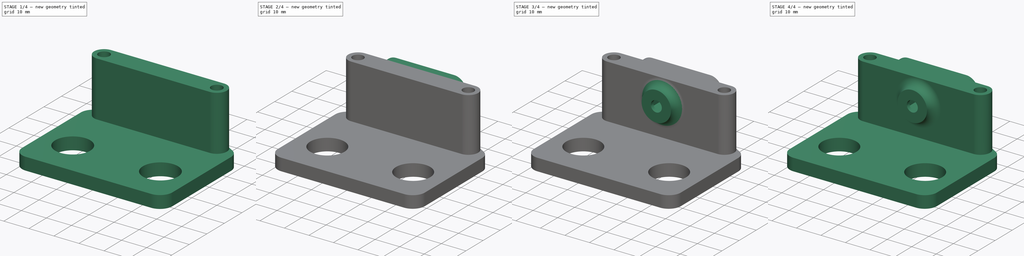
[diagram: build sequence overview — one tinted view per stage of 4, left to right]
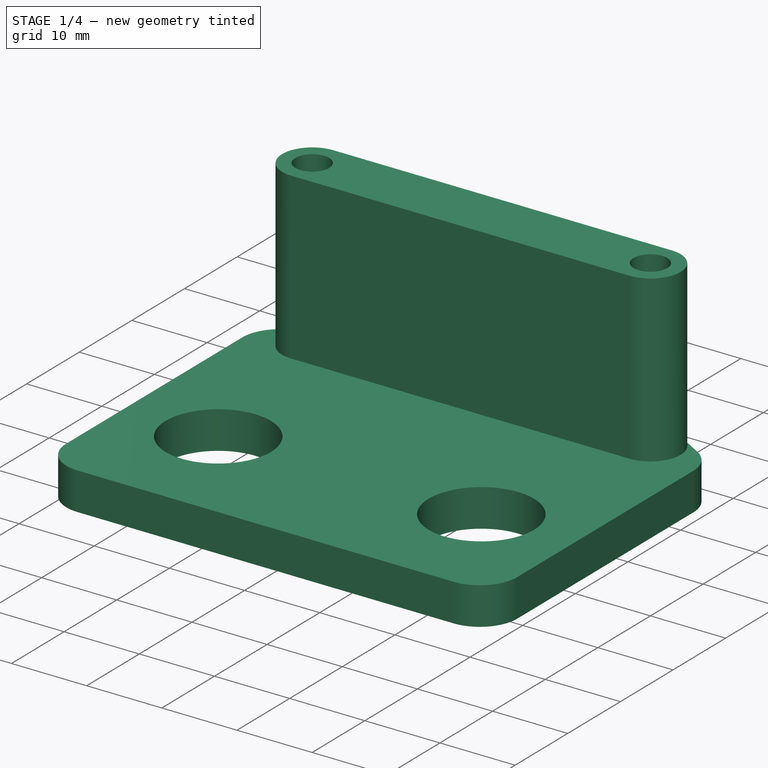
[diagram: stage 1 of 4 — iso view after this stage's code; geometry added in this stage tinted green]
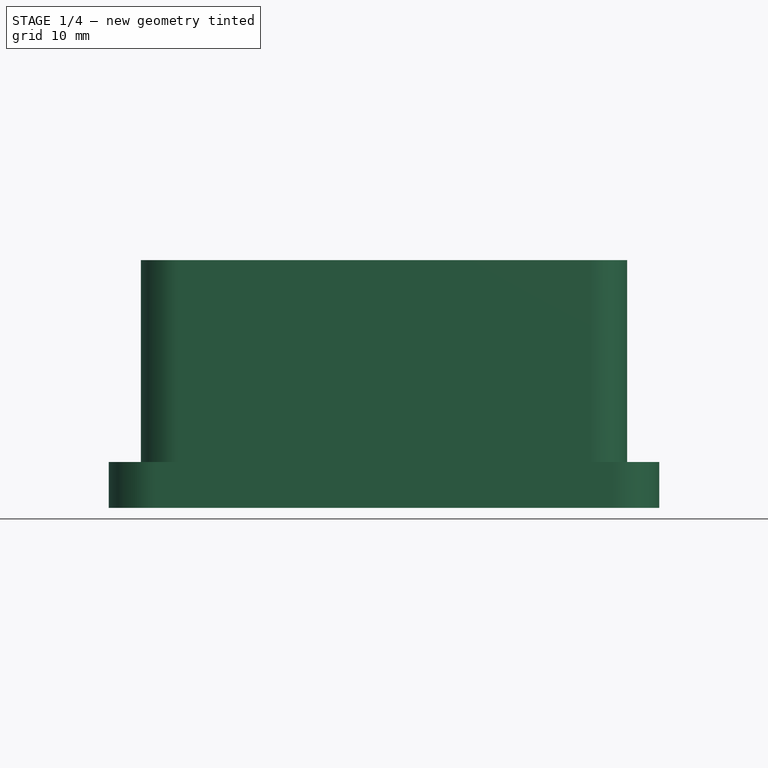
[diagram: stage 1 of 4 — front view after this stage's code; geometry added in this stage tinted green]
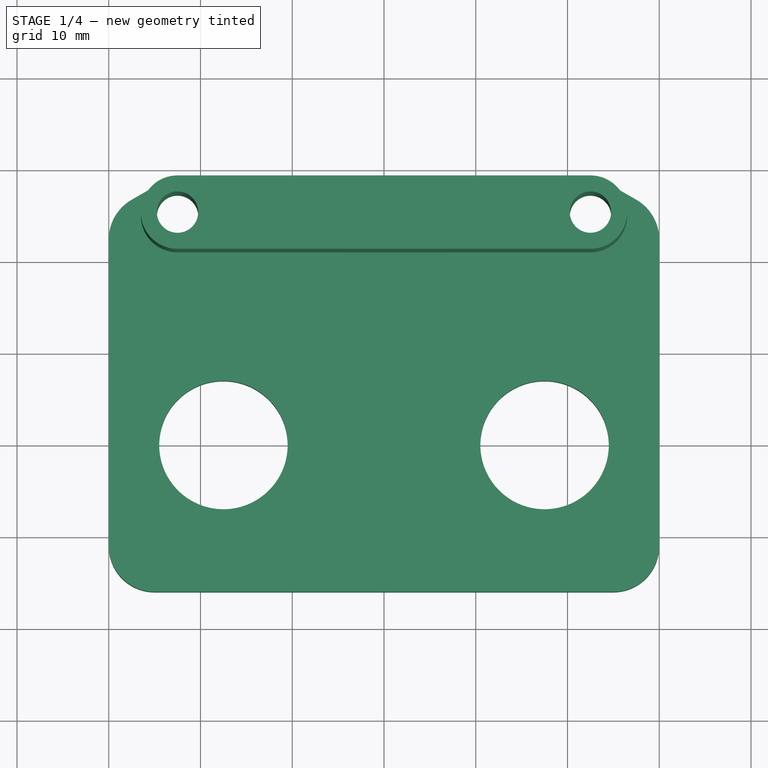
[diagram: stage 1 of 4 — top view after this stage's code; geometry added in this stage tinted green]
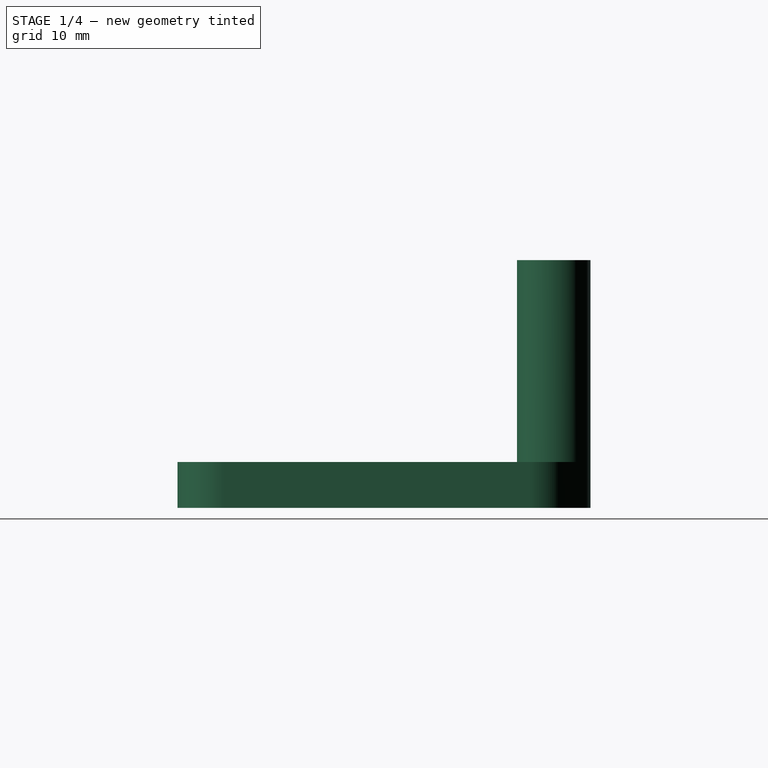
[diagram: stage 1 of 4 — right view after this stage's code; geometry added in this stage tinted green]
FCSTD DOCUMENT  (FreeCAD 1.1R39747 (Git))
Label: claw-back
License: All rights reserved
LicenseURL: https://en.wikipedia.org/wiki/All_rights_reserved
objects: Sketcher::SketchObject×12, PartDesign::Pad×6, PartDesign::Pocket×5, App::Point×2, PartDesign::Hole×1, Part::LocalCoordinateSystem×1, PartDesign::AdditivePipe×1, PartDesign::Body×1
note: 64 computed .brp shape members not serialized (recipe doc carries the construction recipe); baked Part::Feature solids carry a one-line shape summary decoded from their .brp
EXTERNAL_REF file=variables.FCStd obj=Spreadsheet

FEATURE [Sketcher::SketchObject] Sketch
  ArcFitTolerance = 1e-06
  AttachmentSupport = -> [XY_Plane]
  ExternalTypes = [0]
  FullyConstrained = false
  MakeInternals = false
  MapMode = 5
  expr: Constraints[1] = <<variables>>#Spreadsheet.claw_pincher_c2c
  expr: Constraints[30] = <<variables>>#Spreadsheet.claw_back_outer_spacer_holes_wing_angle
  expr: Constraints[33] = <<variables>>#Spreadsheet.claw_back_spacer_diameter / 2
  expr: Constraints[50] = <<variables>>#Spreadsheet.claw_back_outer_spacer_holes_wing_angle
  expr: Constraints[53] = variables#Spreadsheet.distance_bearing_holes_to_end
  sketch-geometry (27):
    g0: LineSegment [constr] StartX=-17.5 StartY=1.14452e-11 StartZ=0 EndX=17.5 EndY=1.14452e-11 EndZ=0
    g1: Circle CenterX=-17.5 CenterY=1.14452e-11 CenterZ=0 NormalX=0 NormalY=0 NormalZ=1 AngleXU=0 Radius=7
    g2: Circle CenterX=17.5 CenterY=1.14452e-11 CenterZ=0 NormalX=0 NormalY=0 NormalZ=1 AngleXU=0 Radius=7
    g3: LineSegment StartX=-27.5 StartY=26.7321 StartZ=0 EndX=-24.5 EndY=28.4641 EndZ=0
    g4: LineSegment StartX=-22.5 StartY=29 StartZ=0 EndX=22.5 EndY=29 EndZ=0
    g5: LineSegment StartX=24.5 StartY=28.4641 StartZ=0 EndX=27.5 EndY=26.7321 EndZ=0
    g6: GeomPoint X=0 Y=29 Z=0
    g7: LineSegment [constr] StartX=-22.5 StartY=25 StartZ=0 EndX=22.5 EndY=25 EndZ=0
    g8: GeomPoint [constr] X=1.28886e-11 Y=25 Z=0
    g9: Circle CenterX=-22.5 CenterY=25 CenterZ=0 NormalX=0 NormalY=0 NormalZ=1 AngleXU=0 Radius=2.25
    g10: Circle CenterX=22.5 CenterY=25 CenterZ=0 NormalX=0 NormalY=0 NormalZ=1 AngleXU=0 Radius=2.25
    g11: Circle [constr] CenterX=-22.5 CenterY=25 CenterZ=0 NormalX=0 NormalY=0 NormalZ=1 AngleXU=0 Radius=4
    g12: Circle [constr] CenterX=22.5 CenterY=25 CenterZ=0 NormalX=0 NormalY=0 NormalZ=1 AngleXU=0 Radius=4
    g13: ArcOfCircle CenterX=22.5 CenterY=25 CenterZ=0 NormalX=0 NormalY=0 NormalZ=1 AngleXU=0 Radius=4 StartAngle=1.0472 EndAngle=1.5708
    g14: ArcOfCircle CenterX=-22.5 CenterY=25 CenterZ=0 NormalX=0 NormalY=0 NormalZ=1 AngleXU=0 Radius=4 StartAngle=1.5708 EndAngle=2.0944
    g15: LineSegment StartX=25 StartY=-16 StartZ=0 EndX=-25 EndY=-16 EndZ=0
    g16: LineSegment StartX=-30 StartY=22.4019 StartZ=0 EndX=-30 EndY=-11 EndZ=0
    g17: ArcOfCircle CenterX=-25 CenterY=-11 CenterZ=0 NormalX=0 NormalY=0 NormalZ=1 AngleXU=0 Radius=5 StartAngle=3.14159 EndAngle=4.71239
    g18: GeomPoint [constr] X=-30 Y=-16 Z=0
    g19: ArcOfCircle CenterX=-25 CenterY=22.4019 CenterZ=0 NormalX=0 NormalY=0 NormalZ=1 AngleXU=0 Radius=5 StartAngle=2.0944 EndAngle=3.14159
    g20: GeomPoint [constr] X=-30 Y=25.2887 Z=0
    g21: ArcOfCircle CenterX=25 CenterY=-11 CenterZ=0 NormalX=0 NormalY=0 NormalZ=1 AngleXU=0 Radius=5 StartAngle=4.71239 EndAngle=6.28319
    g22: GeomPoint [constr] X=30 Y=-16 Z=0
    g23: ArcOfCircle CenterX=25 CenterY=22.4019 CenterZ=0 NormalX=0 NormalY=0 NormalZ=1 AngleXU=0 Radius=5 StartAngle=3.1057e-12 EndAngle=1.0472
    g24: GeomPoint [constr] X=30.2347 Y=25.1532 Z=0
    g25: GeomPoint [constr] X=0 Y=6 Z=0
    g26: LineSegment StartX=30 StartY=22.4019 StartZ=0 EndX=30 EndY=-11 EndZ=0
  constraints (61):
    c: Horizontal(g0)
    c: DistanceX(g0,g0) = 35
    c: Symmetric(g0,g0,g-1)
    c: Diameter(g1) = 14
    c: Coincident(g1,g0)
    c: Coincident(g2,g0)
    c: Equal(g2,g1)
    c: Horizontal(g4)
    c: PointOnObject(g6,g-2)
    c: Horizontal(g7)
    c: DistanceX(g7,g7) = 45
    c: Distance(g0,g7) = 25
    c: Symmetric(g7,g7,g8)
    c: PointOnObject(g8,g-2)
    c: Coincident(g10,g7)
    c: Equal(g9,g10)
    c: Tangent(g4,g11) = 1.5708
    c: Tangent(g3,g11) = 1.5708
    c: Coincident(g12,g7)
    c: Equal(g12,g11)
    c: Equal(g13,g12)
    c: Tangent(g4,g13) = 1.5708
    c: PointOnObject(g6,g4)
    c: Coincident(g5,g13)
    c: Tangent(g5,g12) = 1.5708
    c: Coincident(g14,g3)
    c: Coincident(g14,g4)
    c: Equal(g14,g11)
    c: Diameter(g9) = 4.5
    c: Vertical(g16)
    c: Angle(g3,g7) = 2.61799
    c: Coincident(g9,g14)
    c: Coincident(g7,g11)
    c: Radius(g14) = 4
    c: Horizontal(g15)
    c: PointOnObject(g18,g15)
    c: PointOnObject(g18,g16)
    c: Tangent(g15,g17) = 1.5708
    c: Tangent(g16,g17) = -1.5708
    c: PointOnObject(g20,g3)
    c: PointOnObject(g20,g16)
    c: Tangent(g3,g19) = 1.5708
    c: Tangent(g16,g19) = -1.5708
    c: Radius(g17) = 5
    c: Equal(g19,g17)
    c: Tangent(g26,g21) = 1.5708
    c: Equal(g21,g17)
    c: PointOnObject(g24,g5)
    c: Tangent(g5,g23) = 1.5708
    c: Equal(g23,g21)
    c: Angle(g7,g5) = 2.61799
    c: Horizontal(g22,g15)
    c: Equal(g3,g5)
    c: Distance(g15,g0) = 16
    c: Tangent(g21,g15) = 1.5708
    c: PointOnObject(g25,g-2)
    c: Distance(g25,g0) = 6
    c: Vertical(g26)
    c: PointOnObject(g22,g26)
    c: Tangent(g26,g23) = 1.5708
    c: Distance(g26,g16) = 60
FEATURE [PartDesign::Pad] Pad
  Direction = (0,0,1)
  Length = 5
  Length2 = 10
  Profile = -> Sketch
  ReferenceAxis = -> Sketch [N_Axis]
  Refine = true
  Suppressed = false
  Type = 0
FEATURE [Sketcher::SketchObject] Sketch001
  ArcFitTolerance = 1e-06
  AttachmentSupport = -> [Pad]
  ExternalGeometry = -> [Pad]
  ExternalTypes = [0]
  FullyConstrained = true
  MakeInternals = false
  MapMode = 5
  Placement = pos=(0,0,5) rot=(0,0,1;0rad)
  expr: Constraints[12] = <<variables>>#Spreadsheet.claw_back_spacer_diameter / 2
  sketch-geometry (6):
    g0: ArcOfCircle CenterX=22.5 CenterY=25 CenterZ=0 NormalX=0 NormalY=0 NormalZ=1 AngleXU=0 Radius=4 StartAngle=4.71239 EndAngle=7.85398
    g1: Circle CenterX=22.5 CenterY=25 CenterZ=0 NormalX=0 NormalY=0 NormalZ=1 AngleXU=0 Radius=2.25
    g2: ArcOfCircle CenterX=-22.5 CenterY=25 CenterZ=0 NormalX=0 NormalY=0 NormalZ=1 AngleXU=0 Radius=4 StartAngle=1.5708 EndAngle=4.71239
    g3: LineSegment StartX=-22.5 StartY=29 StartZ=0 EndX=22.5 EndY=29 EndZ=0
    g4: LineSegment StartX=22.5 StartY=21 StartZ=0 EndX=-22.5 EndY=21 EndZ=0
    g5: Circle CenterX=-22.5 CenterY=25 CenterZ=0 NormalX=0 NormalY=0 NormalZ=1 AngleXU=0 Radius=2.25
  constraints (13):
    c: Coincident(g0,g-3)
    c: Coincident(g1,g0)
    c: Equal(g-3,g1)
    c: Coincident(g2,g-4)
    c: Horizontal(g3)
    c: Horizontal(g4)
    c: Tangent(g3,g0) = 1.5708
    c: Tangent(g2,g3) = 1.5708
    c: Coincident(g5,g2)
    c: Equal(g-4,g5)
    c: Coincident(g0,g4)
    c: Tangent(g4,g2) = 1.5708
    c: Radius(g2) = 4
FEATURE [PartDesign::Pad] Pad001
  BaseFeature = -> Pad
  Direction = (0,0,1)
  Length = 22
  Length2 = 10
  Profile = -> Sketch001
  ReferenceAxis = -> Sketch001 [N_Axis]
  Refine = true
  Suppressed = false
  Type = 0
  expr: Length = variables#Spreadsheet.claw_back_spacer_length
FEATURE [Sketcher::SketchObject] Sketch002
  ArcFitTolerance = 1e-06
  AttachmentSupport = -> [Pad001]
  ExternalGeometry = -> [Pad001]
  ExternalTypes = [0]
  FullyConstrained = true
  MakeInternals = false
  MapMode = 5
  Placement = pos=(2.268e-13,29,3.4653e-11) rot=(0,0.707107,0.707107;3.14159rad)
  expr: Constraints[14] = <<variables>>#Spreadsheet.claw_base_thickness
  sketch-geometry (7):
    g0: LineSegment [constr] StartX=-25 StartY=35.7 StartZ=0 EndX=25 EndY=35.7 EndZ=0
    g1: GeomPoint [constr] X=0 Y=35.7 Z=0
    g2: LineSegment [constr] StartX=-11.3137 StartY=17.85 StartZ=0 EndX=11.3137 EndY=17.85 EndZ=0
    g3: GeomPoint [constr] X=0 Y=17.85 Z=0
    g4: Circle CenterX=-11.3137 CenterY=17.85 CenterZ=0 NormalX=0 NormalY=0 NormalZ=1 AngleXU=0 Radius=2.25
    g5: Circle CenterX=11.3137 CenterY=17.85 CenterZ=0 NormalX=0 NormalY=0 NormalZ=1 AngleXU=0 Radius=2.25
    g6: Circle CenterX=0 CenterY=17.85 CenterZ=0 NormalX=0 NormalY=0 NormalZ=1 AngleXU=0 Radius=5
  constraints (15):
    c: Distance(g0) = 50
    c: Horizontal(g0)
    c: Symmetric(g0,g0,g1)
    c: PointOnObject(g1,g-2)
    c: Horizontal(g2)
    c: DistanceX(g2,g2) = 22.6274
    c: Symmetric(g2,g2,g3)
    c: Symmetric(g1,g-1,g3)
    c: Diameter(g4) = 4.5
    c: Coincident(g4,g2)
    c: Coincident(g5,g2)
    c: Equal(g4,g5)
    c: Diameter(g6) = 10
    c: Coincident(g6,g3)
    c: Distance(g0,g-3) = 8.7
FEATURE [PartDesign::Pocket] Pocket
  BaseFeature = -> Pad001
  Direction = (-7.8e-15,-1,-1.195e-12)
  Length = 0
  Length2 = 5
  Profile = -> Sketch002
  ReferenceAxis = -> Sketch002 [N_Axis]
  Refine = true
  Suppressed = true
  Type = 3
  UpToFace = -> Pad001 [Face14]
  expr: Suppressed = variables#Spreadsheet.rex_mount
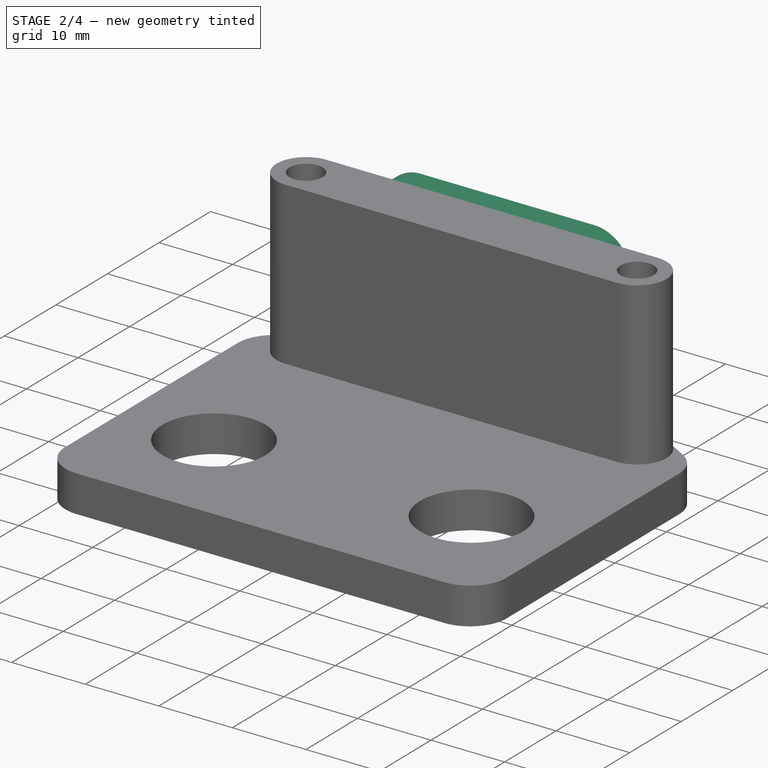
[diagram: stage 2 of 4 — iso view after this stage's code; geometry added in this stage tinted green]
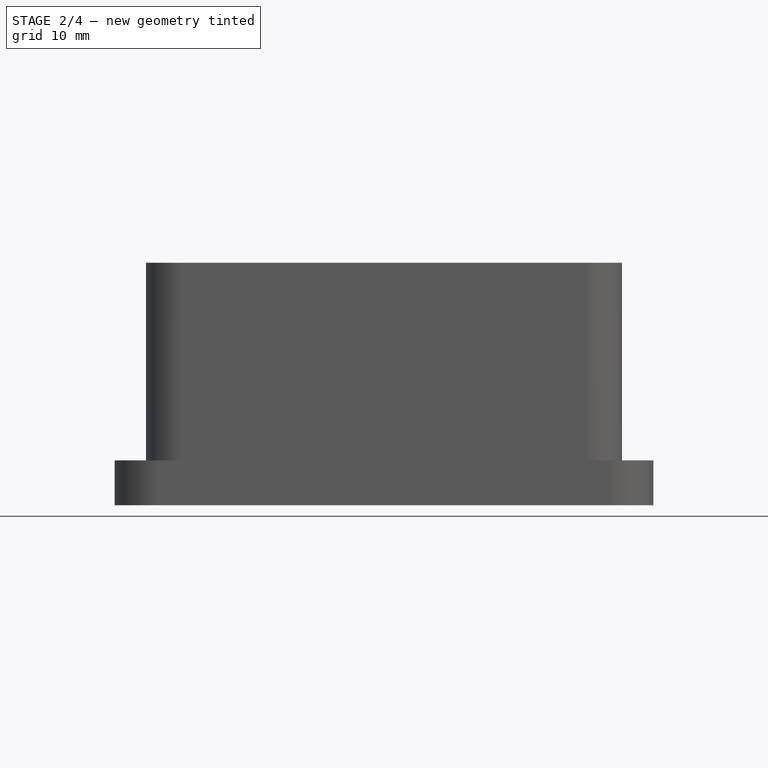
[diagram: stage 2 of 4 — front view after this stage's code; geometry added in this stage tinted green]
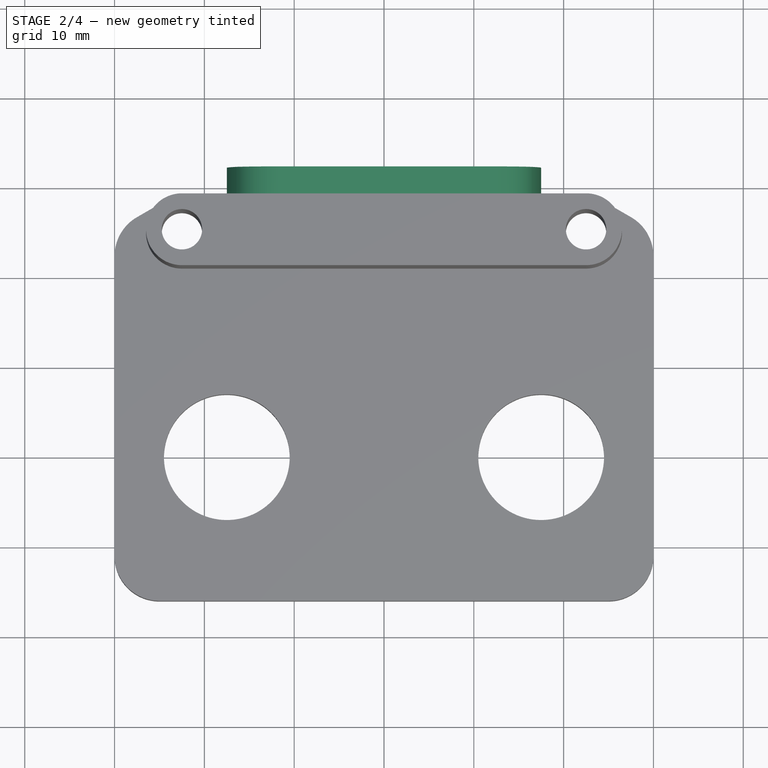
[diagram: stage 2 of 4 — top view after this stage's code; geometry added in this stage tinted green]
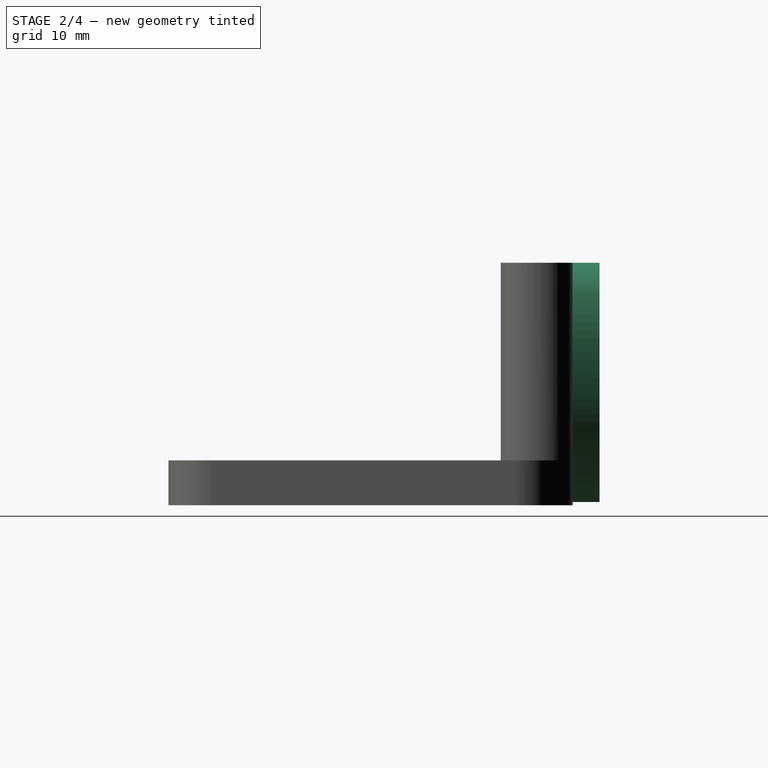
[diagram: stage 2 of 4 — right view after this stage's code; geometry added in this stage tinted green]
FEATURE [Sketcher::SketchObject] Sketch003
  ArcFitTolerance = 1e-06
  AttachmentSupport = -> [Pocket]
  ExternalTypes = [0]
  FullyConstrained = true
  MakeInternals = false
  MapMode = 5
  Placement = pos=(0,21,0) rot=(1,0,0;1.5708rad)
  sketch-geometry (2):
    g0: Circle CenterX=-11.3137 CenterY=17.85 CenterZ=0 NormalX=0 NormalY=0 NormalZ=1 AngleXU=0 Radius=4.75
    g1: Circle CenterX=11.3137 CenterY=17.85 CenterZ=0 NormalX=0 NormalY=0 NormalZ=1 AngleXU=0 Radius=4.75
  constraints (4):
    c: Diameter(g0) = 9.5
    c: Equal(g1,g0)
    c: Coincident(g-4,g1)
    c: Coincident(g-3,g0)
FEATURE [PartDesign::Pocket] Pocket001
  BaseFeature = -> Pocket
  Direction = (0,1,-2e-16)
  Length = 0
  Length2 = 5
  Offset = 2
  Profile = -> Sketch003
  ReferenceAxis = -> Sketch003 [N_Axis]
  Refine = true
  Suppressed = true
  Type = 3
  UpToFace = -> Pocket [Face16]
  expr: Suppressed = variables#Spreadsheet.rex_mount + variables#Spreadsheet.Hub_Mount_Countersink
FEATURE [Sketcher::SketchObject] Sketch004
  ArcFitTolerance = 1e-06
  AttachmentSupport = -> [Pocket001]
  ExternalGeometry = -> [Pocket001]
  ExternalTypes = [0]
  FullyConstrained = true
  MakeInternals = false
  MapMode = 5
  Placement = pos=(2.268e-13,29,3.4653e-11) rot=(0,0.707107,0.707107;3.14159rad)
  expr: Constraints[4] = <<variables>>#Spreadsheet.claw_base_thickness
  sketch-geometry (14):
    g0: LineSegment [constr] StartX=-25 StartY=35.7 StartZ=0 EndX=25 EndY=35.7 EndZ=0
    g1: GeomPoint [constr] X=-1.056e-13 Y=35.7 Z=0
    g2: ArcOfCircle CenterX=-2.462e-13 CenterY=17.85 CenterZ=0 NormalX=0 NormalY=0 NormalZ=1 AngleXU=0 Radius=17.5 StartAngle=2.80317 EndAngle=6.62161
    g3: LineSegment StartX=-11.791 StartY=27 StartZ=0 EndX=11.791 EndY=27 EndZ=0
    g4: LineSegment StartX=3.575 StartY=19.914 StartZ=0 EndX=-2.669e-13 EndY=21.9781 EndZ=0
    g5: LineSegment StartX=-2.669e-13 StartY=21.9781 StartZ=0 EndX=-3.575 EndY=19.914 EndZ=0
    g6: LineSegment StartX=-3.575 StartY=19.914 StartZ=0 EndX=-3.575 EndY=15.786 EndZ=0
    g7: LineSegment StartX=-3.575 StartY=15.786 StartZ=0 EndX=-3.353e-13 EndY=13.7219 EndZ=0
    g8: LineSegment StartX=-3.353e-13 StartY=13.7219 StartZ=0 EndX=3.575 EndY=15.786 EndZ=0
    g9: LineSegment StartX=3.575 StartY=15.786 StartZ=0 EndX=3.575 EndY=19.914 EndZ=0
    g10: Circle [constr] CenterX=-2.462e-13 CenterY=17.85 CenterZ=0 NormalX=0 NormalY=0 NormalZ=1 AngleXU=0 Radius=4.12805
    g11: Circle [constr] CenterX=-2.462e-13 CenterY=17.85 CenterZ=0 NormalX=0 NormalY=0 NormalZ=1 AngleXU=0 Radius=3.575
    g12: ArcOfCircle CenterX=11.791 CenterY=22 CenterZ=0 NormalX=0 NormalY=0 NormalZ=1 AngleXU=0 Radius=5 StartAngle=0.338423 EndAngle=1.5708
    g13: ArcOfCircle CenterX=-11.791 CenterY=22 CenterZ=0 NormalX=0 NormalY=0 NormalZ=1 AngleXU=0 Radius=5 StartAngle=1.5708 EndAngle=2.80317
  constraints (34):
    c: Distance(g0) = 50
    c: Horizontal(g0)
    c: Symmetric(g0,g0,g1)
    c: PointOnObject(g1,g-2)
    c: Distance(g1,g-3) = 8.7
    c: Diameter(g2) = 35
    c: Symmetric(g-1,g1,g2)
    c: Horizontal(g3)
    c: Coincident(g4,g5)
    c: Coincident(g5,g6)
    c: Coincident(g6,g7)
    c: Coincident(g7,g8)
    c: Coincident(g8,g9)
    c: Coincident(g9,g4)
    c: Equal(g4, g5-g9) x5
    c: PointOnObject(g4,g10)
    c: PointOnObject(g5,g10)
    c: PointOnObject(g6,g10)
    c: PointOnObject(g7,g10)
    c: PointOnObject(g8,g10)
    c: PointOnObject(g9,g10)
    c: Coincident(g10,g2)
    c: Vertical(g9)
    c: Coincident(g11,g2)
    c: Tangent(g11,g4)
    c: Diameter(g11) = 7.15  'rex_thickness'
    c: Tangent(g2,g12) = -1.5708
    c: Tangent(g3,g12) = 1.5708
    c: Tangent(g2,g13) = -1.5708
    c: Tangent(g3,g13) = 1.5708
    c: Radius(g13) = 5
    c: Equal(g12,g13)
    c: PointOnObject(g3,g-3)
    c: Distance(g2,g-3) = 9.15  'MountDistFromWall'
FEATURE [App::Point] Origin001  label="Origin"
  Role = Origin
FEATURE [App::Point] Origin002
  Role = Origin
FEATURE [PartDesign::Hole] Hole
  BaseFeature = -> Pocket001
  CustomThreadClearance = 0
  Depth = 25
  DepthType = 0
  Diameter = 4.5
  DrillForDepth = false
  DrillPoint = 1
  DrillPointAngle = 118
  HoleCutCountersinkAngle = 90
  HoleCutCustomValues = false
  HoleCutDepth = 3
  HoleCutDiameter = 9
  HoleCutType = 2
  ModelThread = false
  Profile = -> Pocket001 [?Edge42,?Edge40]
  Refine = true
  Reversed = true
  Suppressed = true
  Tapered = false
  TaperedAngle = 90
  ThreadClass = 0
  ThreadDepth = 25
  ThreadDepthType = 0
  ThreadDirection = 0
  ThreadFit = 0
  ThreadSize = 11
  ThreadType = 1
  Threaded = false
  UseCustomThreadClearance = false
  expr: Suppressed = 2 - (variables#Spreadsheet.hub_mount + variables#Spreadsheet.Hub_Mount_Countersink)
FEATURE [PartDesign::Pad] Pad002
  BaseFeature = -> Hole
  Direction = (7.8e-15,1,1.195e-12)
  Length = 3
  Length2 = 10
  Profile = -> Sketch004
  ReferenceAxis = -> Sketch004 [N_Axis]
  Refine = true
  Suppressed = false
  Type = 0
  expr: Suppressed = variables#Spreadsheet.hub_mount
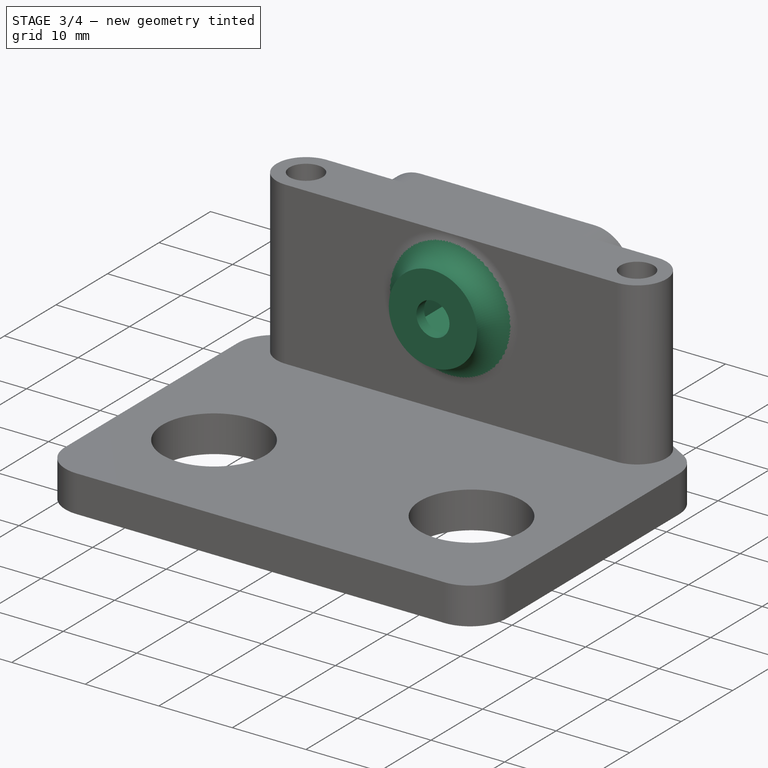
[diagram: stage 3 of 4 — iso view after this stage's code; geometry added in this stage tinted green]
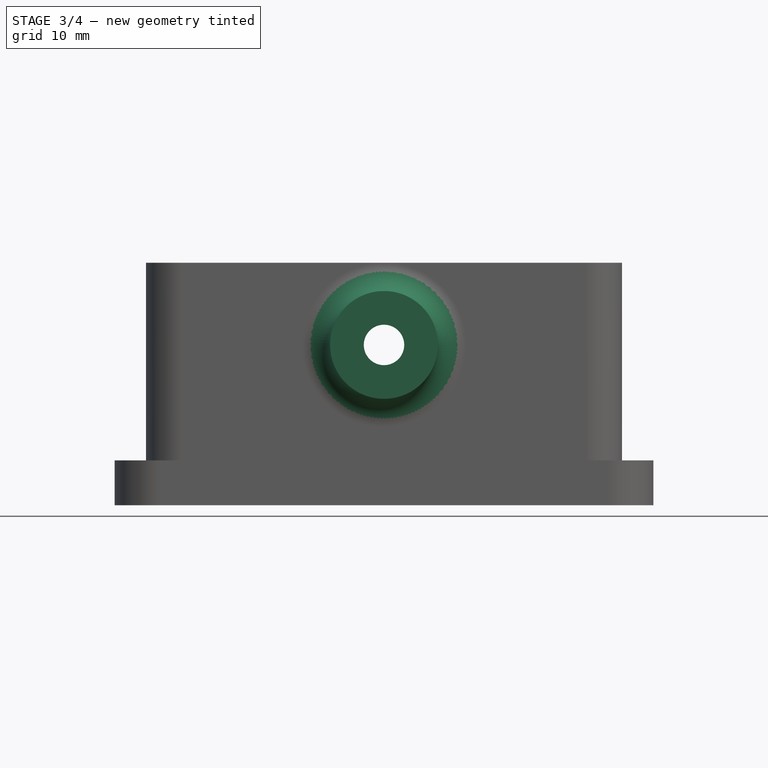
[diagram: stage 3 of 4 — front view after this stage's code; geometry added in this stage tinted green]
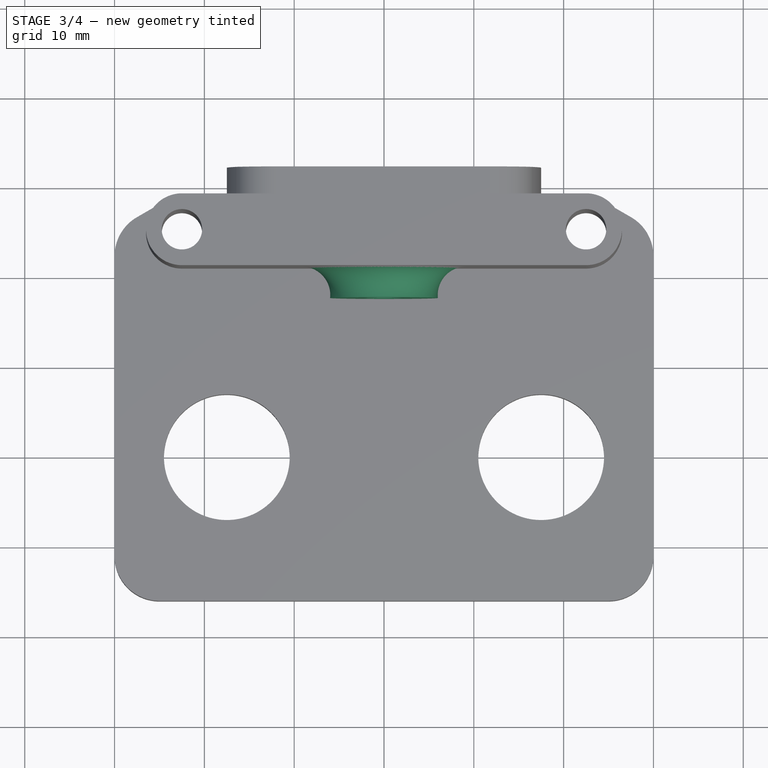
[diagram: stage 3 of 4 — top view after this stage's code; geometry added in this stage tinted green]
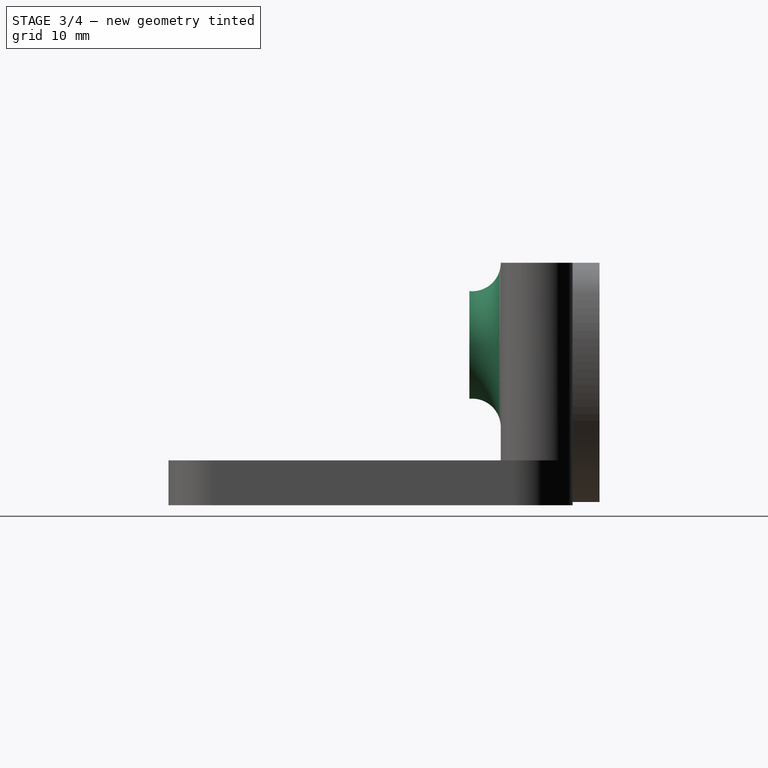
[diagram: stage 3 of 4 — right view after this stage's code; geometry added in this stage tinted green]
FEATURE [Sketcher::SketchObject] Sketch005
  ArcFitTolerance = 1e-06
  AttachmentSupport = -> [Pad002]
  ExternalGeometry = -> [Pad002]
  ExternalTypes = [0]
  FullyConstrained = true
  MakeInternals = false
  MapMode = 5
  Placement = pos=(2.268e-13,29,3.4653e-11) rot=(0,0.707107,0.707107;3.14159rad)
  expr: Constraints[20] = Sketch004.Constraints.rex_thickness
  sketch-geometry (8):
    g0: LineSegment StartX=3.575 StartY=19.914 StartZ=0 EndX=4.3108e-12 EndY=21.9781 EndZ=0
    g1: LineSegment StartX=4.3108e-12 StartY=21.9781 StartZ=0 EndX=-3.575 EndY=19.914 EndZ=0
    g2: LineSegment StartX=-3.575 StartY=19.914 StartZ=0 EndX=-3.575 EndY=15.786 EndZ=0
    g3: LineSegment StartX=-3.575 StartY=15.786 StartZ=0 EndX=-4.1283e-12 EndY=13.7219 EndZ=0
    g4: LineSegment StartX=-4.1283e-12 StartY=13.7219 StartZ=0 EndX=3.575 EndY=15.786 EndZ=0
    g5: LineSegment StartX=3.575 StartY=15.786 StartZ=0 EndX=3.575 EndY=19.914 EndZ=0
    g6: Circle [constr] CenterX=-2.462e-13 CenterY=17.85 CenterZ=0 NormalX=0 NormalY=0 NormalZ=1 AngleXU=0 Radius=4.12805
    g7: Circle [constr] CenterX=-2.462e-13 CenterY=17.85 CenterZ=0 NormalX=0 NormalY=0 NormalZ=1 AngleXU=0 Radius=3.575
  constraints (18):
    c: Coincident(g0,g1)
    c: Coincident(g1,g2)
    c: Coincident(g2,g3)
    c: Coincident(g3,g4)
    c: Coincident(g4,g5)
    c: Coincident(g5,g0)
    c: Equal(g0, g1-g5) x5
    c: PointOnObject(g0,g6)
    c: PointOnObject(g1,g6)
    c: PointOnObject(g2,g6)
    c: PointOnObject(g3,g6)
    c: PointOnObject(g4,g6)
    c: PointOnObject(g5,g6)
    c: Coincident(g6,g-3)
    c: Coincident(g7,g6)
    c: Tangent(g7,g5)
    c: Diameter(g7) = 7.15
    c: Vertical(g5)
FEATURE [PartDesign::Pocket] Pocket002
  BaseFeature = -> Pad002
  Direction = (-7.8e-15,-1,-1.195e-12)
  Length = 0
  Length2 = 5
  Profile = -> Sketch005
  ReferenceAxis = -> Sketch005 [N_Axis]
  Refine = true
  Suppressed = false
  Type = 3
  UpToFace = -> Pad002 [Face7]
  expr: Suppressed = variables#Spreadsheet.hub_mount
FEATURE [Sketcher::SketchObject] Sketch006
  ArcFitTolerance = 1e-06
  AttachmentSupport = -> [Pocket002]
  ExternalGeometry = -> [Pocket002]
  ExternalTypes = [0,0,0,0,0,0]
  FullyConstrained = true
  MakeInternals = false
  MapMode = 5
  Placement = pos=(0,21,0) rot=(1,0,0;1.5708rad)
  sketch-geometry (2):
    g0: Circle [constr] CenterX=7.888e-13 CenterY=17.85 CenterZ=0 NormalX=0 NormalY=0 NormalZ=1 AngleXU=0 Radius=3.575
    g1: Circle CenterX=7.888e-13 CenterY=17.85 CenterZ=0 NormalX=0 NormalY=0 NormalZ=1 AngleXU=0 Radius=6
  constraints (5):
    c: Tangent(g0,g-8)
    c: Tangent(g0,g-5)
    c: Tangent(g0,g-6)
    c: Coincident(g1,g0)
    c: Diameter(g1) = 12
FEATURE [PartDesign::Pad] Pad003
  BaseFeature = -> Pocket002
  Direction = (0,-1,2e-16)
  Length = 2
  Length2 = 10
  Profile = -> Sketch006
  ReferenceAxis = -> Sketch006 [N_Axis]
  Refine = true
  Suppressed = false
  Type = 0
  expr: Suppressed = variables#Spreadsheet.hub_mount
FEATURE [Sketcher::SketchObject] Sketch007
  ArcFitTolerance = 1e-06
  AttachmentOffset = pos=(0,0,2) rot=(0,0,1;0rad)
  AttachmentSupport = -> [Pad003]
  ExternalTypes = [0]
  FullyConstrained = true
  MakeInternals = false
  MapMode = 5
  Placement = pos=(0,19,4e-16) rot=(1,0,0;1.5708rad)
  expr: .AttachmentOffset.Base.z = Pad003.Length
  sketch-geometry (1):
    g0: Circle CenterX=0 CenterY=17.85 CenterZ=0 NormalX=0 NormalY=0 NormalZ=1 AngleXU=0 Radius=2.25
  constraints (2):
    c: Diameter(g0) = 4.5
    c: Coincident(g0,g-3)
FEATURE [PartDesign::Pad] Pad004
  BaseFeature = -> Pad003
  Direction = (0,-1,2e-16)
  Length = 1.5
  Length2 = 10
  Profile = -> Sketch007
  ReferenceAxis = -> Sketch007 [N_Axis]
  Refine = true
  Suppressed = false
  Type = 0
  expr: Suppressed = variables#Spreadsheet.hub_mount
FEATURE [Part::LocalCoordinateSystem] LCS
  AttacherType = Attacher::AttachEngine3D
  AttachmentOffset = pos=(-3.5,-9.15,0) rot=(0,-1,0;1.5708rad)
  AttachmentSupport = -> [Pad004]
  MapMode = 45
  OriginFeatures = -> [X_Axis001,Y_Axis001,Z_Axis001,XY_Plane001,XZ_Plane001,YZ_Plane001,Origin002]
  Placement = pos=(-1.2125e-08,17.5,17.85) rot=(1,0,0;1.5708rad)
  expr: .AttachmentOffset.Base.x = -(Pad003.Length + Pad004.Length)
  expr: .AttachmentOffset.Base.y = -Sketch004.Constraints.MountDistFromWall
  expr: .AttachmentOffset.Base.z = 0
FEATURE [Sketcher::SketchObject] Sketch008
  ArcFitTolerance = 1e-06
  AttachmentSupport = -> [YZ_Plane001]
  ExternalGeometry = -> [Pad004]
  ExternalTypes = [0,0]
  FullyConstrained = true
  MakeInternals = false
  MapMode = 5
  Placement = pos=(0,0,0) rot=(0.57735,0.57735,0.57735;2.0944rad)
  sketch-geometry (3):
    g0: LineSegment StartX=17.5 StartY=23.85 StartZ=0 EndX=21 EndY=23.85 EndZ=0
    g1: LineSegment StartX=21 StartY=23.85 StartZ=0 EndX=21 EndY=27 EndZ=0
    g2: ArcOfCircle CenterX=17.8325 CenterY=27 CenterZ=0 NormalX=0 NormalY=0 NormalZ=1 AngleXU=0 Radius=3.1675 StartAngle=4.60722 EndAngle=6.28319
  constraints (7):
    c: PointOnObject(g0,g-3)
    c: Horizontal(g0)
    c: Coincident(g1,g0)
    c: Coincident(g1,g-3)
    c: Coincident(g2,g0)
    c: Tangent(g2,g1) = -1.5708
    c: Coincident(g-4,g0)
FEATURE [PartDesign::AdditivePipe] AdditivePipe
  AuxilleryCurvelinear = true
  AuxillerySpineTangent = false
  BaseFeature = -> Pad004
  Binormal = (0,0,0)
  Mode = 0
  Profile = -> Sketch008
  Refine = true
  Spine = -> Pad004 [Edge40]
  SpineTangent = false
  Suppressed = false
  Transformation = 0
  Transition = 0
  expr: Suppressed = variables#Spreadsheet.hub_mount
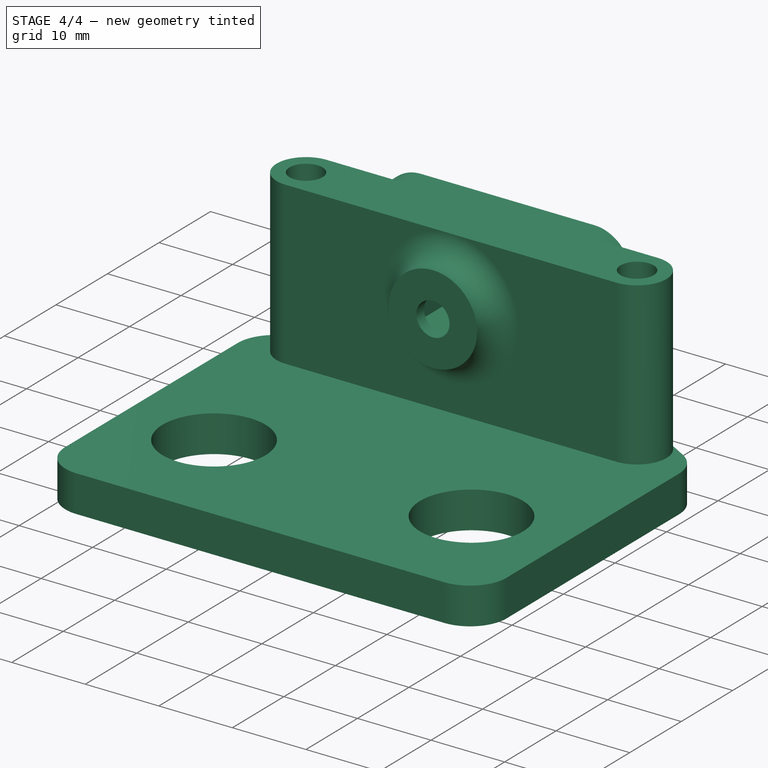
[diagram: stage 4 of 4 — iso view after this stage's code; geometry added in this stage tinted green]
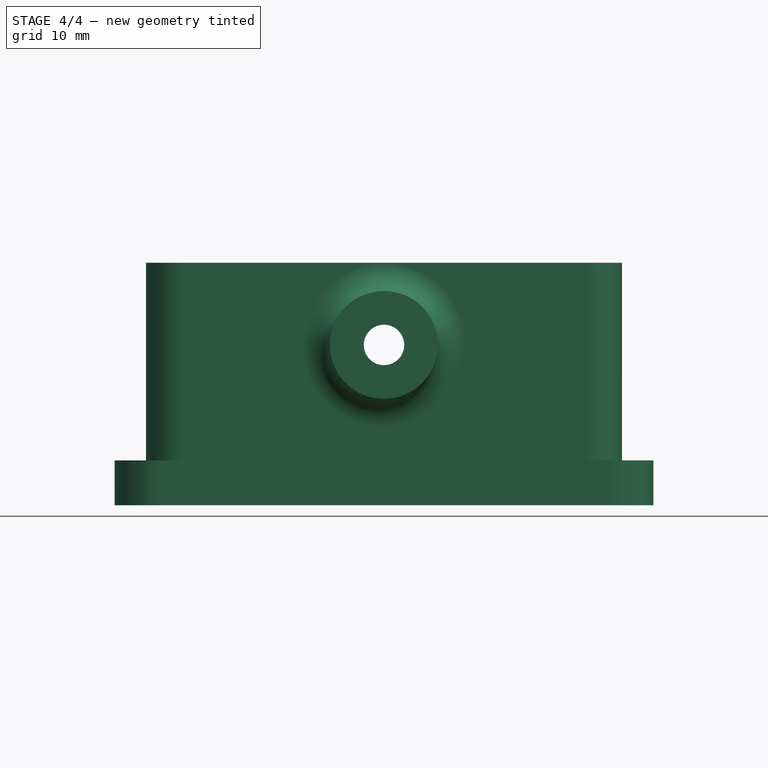
[diagram: stage 4 of 4 — front view after this stage's code; geometry added in this stage tinted green]
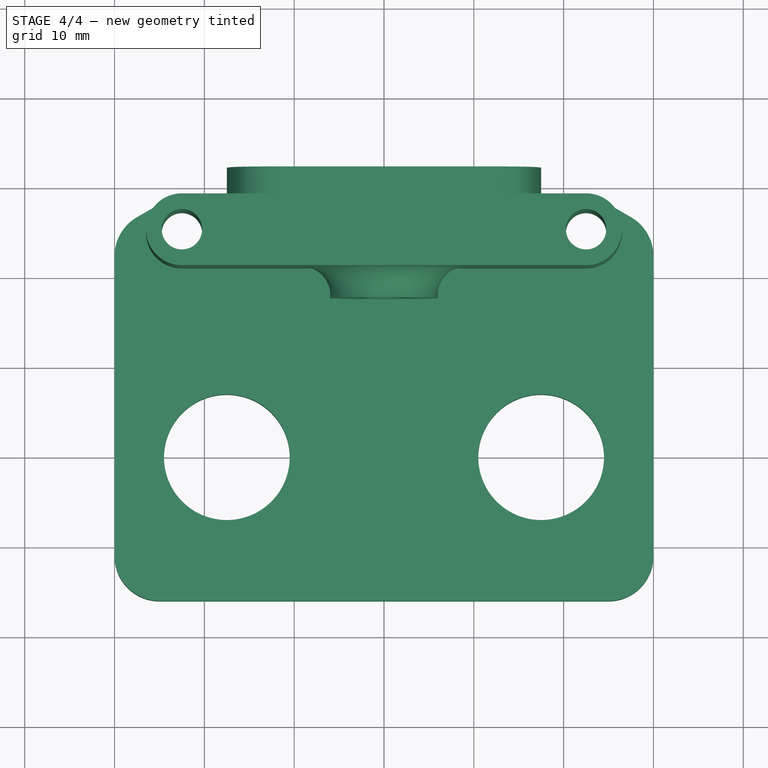
[diagram: stage 4 of 4 — top view after this stage's code; geometry added in this stage tinted green]
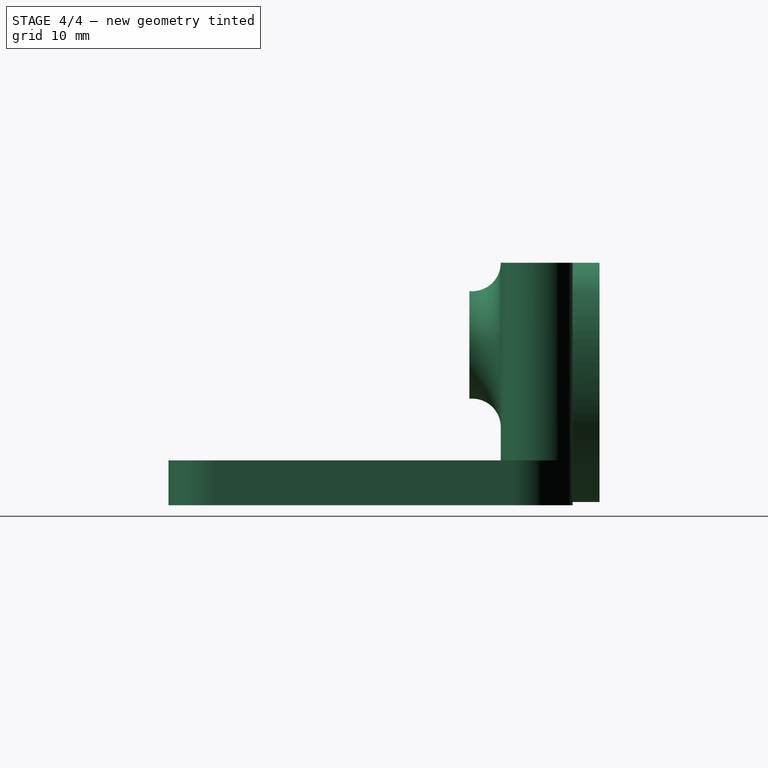
[diagram: stage 4 of 4 — right view after this stage's code; geometry added in this stage tinted green]
FEATURE [Sketcher::SketchObject] Sketch009
  ArcFitTolerance = 1e-06
  AttachmentSupport = -> [AdditivePipe]
  ExternalGeometry = -> [AdditivePipe]
  ExternalTypes = [0,0,0]
  FullyConstrained = true
  MakeInternals = false
  MapMode = 5
  Placement = pos=(0,0,0) rot=(1,0,0;3.14159rad)
  sketch-geometry (13):
    g0: LineSegment [constr] StartX=-29.5 StartY=-13.5 StartZ=0 EndX=29.5 EndY=-13.5 EndZ=0
    g1: LineSegment [constr] StartX=29.5 StartY=-13.5 StartZ=0 EndX=29.5 EndY=-3.5 EndZ=0
    g2: LineSegment [constr] StartX=29.5 StartY=-3.5 StartZ=0 EndX=-29.5 EndY=-3.5 EndZ=0
    g3: LineSegment [constr] StartX=-29.5 StartY=-3.5 StartZ=0 EndX=-29.5 EndY=-13.5 EndZ=0
    g4: GeomPoint [constr] X=0 Y=-8.5 Z=0
    g5: ArcOfCircle CenterX=29.5 CenterY=-3.5 CenterZ=0 NormalX=0 NormalY=0 NormalZ=1 AngleXU=0 Radius=4.5 StartAngle=6.13426e-06 EndAngle=1.45946
    g6: LineSegment StartX=34 StartY=-13.5 StartZ=0 EndX=34 EndY=-3.49997 EndZ=0
    g7: ArcOfCircle CenterX=29.5 CenterY=-13.5 CenterZ=0 NormalX=0 NormalY=0 NormalZ=1 AngleXU=0 Radius=4.5 StartAngle=4.82373 EndAngle=6.28319
    g8: ArcOfCircle CenterX=-29.5 CenterY=-3.5 CenterZ=0 NormalX=0 NormalY=0 NormalZ=1 AngleXU=0 Radius=4.5 StartAngle=1.68214 EndAngle=3.14159
    g9: ArcOfCircle CenterX=-29.5 CenterY=-13.5 CenterZ=0 NormalX=0 NormalY=0 NormalZ=1 AngleXU=0 Radius=4.5 StartAngle=3.14159 EndAngle=4.60105
    g10: LineSegment StartX=-34 StartY=-13.5 StartZ=0 EndX=-34 EndY=-3.5 EndZ=0
    g11: LineSegment StartX=-30 StartY=-17.9721 StartZ=0 EndX=-30 EndY=0.972136 EndZ=0
    g12: LineSegment StartX=30 StartY=-17.9721 StartZ=0 EndX=30 EndY=0.972136 EndZ=0
  constraints (36):
    c: Coincident(g0,g1)
    c: Coincident(g1,g2)
    c: Coincident(g2,g3)
    c: Coincident(g3,g0)
    c: Horizontal(g0)
    c: Horizontal(g2)
    c: Vertical(g1)
    c: Vertical(g3)
    c: Symmetric(g2,g0,g4)
    c: Distance(g1,g3) = 59
    c: Distance(g0,g2) = 10
    c: Coincident(g5,g1)
    c: Vertical(g6)
    c: Tangent(g6,g7) = -1.5708
    c: Coincident(g6,g5)
    c: Diameter(g5) = 9
    c: Equal(g7,g5)
    c: Coincident(g7,g0)
    c: Coincident(g8,g2)
    c: Horizontal(g2,g8)
    c: Equal(g8,g5)
    c: Coincident(g9,g0)
    c: Horizontal(g0,g9)
    c: Equal(g9,g8)
    c: Coincident(g10,g8)
    c: Coincident(g9,g10)
    c: PointOnObject(g8,g-5)
    c: PointOnObject(g9,g-5)
    c: Coincident(g11,g9)
    c: Coincident(g11,g8)
    c: PointOnObject(g5,g-4)
    c: PointOnObject(g7,g-4)
    c: Coincident(g12,g7)
    c: Coincident(g12,g5)
    c: PointOnObject(g4,g-2)
    c: DistanceY(g4,g-1) = 8.5
FEATURE [PartDesign::Pad] Pad005
  BaseFeature = -> AdditivePipe
  Direction = (0,0,-1)
  Length = 10
  Length2 = 10
  Profile = -> Sketch009
  ReferenceAxis = -> Sketch009 [N_Axis]
  Refine = true
  Suppressed = true
  Type = 3
  UpToFace = -> AdditivePipe [Face5]
  expr: Suppressed = -(variables#Spreadsheet.use_camera_mount - 1)
FEATURE [Sketcher::SketchObject] Sketch010
  ArcFitTolerance = 1e-06
  AttachmentSupport = -> [Pad005]
  ExternalGeometry = -> [Pad005]
  ExternalTypes = [0,0,0,0,0]
  FullyConstrained = true
  MakeInternals = false
  MapMode = 11
  Placement = pos=(17.5,1.14452e-11,5) rot=(0,0,1;1.5708rad)
  sketch-geometry (4):
    g0: Circle CenterX=13.5 CenterY=-12 CenterZ=0 NormalX=0 NormalY=0 NormalZ=1 AngleXU=0 Radius=2.25
    g1: Circle CenterX=3.5 CenterY=-12 CenterZ=0 NormalX=0 NormalY=0 NormalZ=1 AngleXU=0 Radius=2.25
    g2: Circle CenterX=3.5 CenterY=47 CenterZ=0 NormalX=0 NormalY=0 NormalZ=1 AngleXU=0 Radius=2.25
    g3: Circle CenterX=13.5 CenterY=47 CenterZ=0 NormalX=0 NormalY=0 NormalZ=1 AngleXU=0 Radius=2.25
  constraints (8):
    c: Coincident(g0,g-5)
    c: Coincident(g1,g-6)
    c: Coincident(g2,g-4)
    c: Coincident(g3,g-3)
    c: Equal(g2,g3)
    c: Equal(g3,g0)
    c: Equal(g0,g1)
    c: Equal(g1,g-7)
FEATURE [PartDesign::Pocket] Pocket003
  BaseFeature = -> Pad005
  Direction = (0,0,-1)
  Length = 0
  Length2 = 5
  Profile = -> Sketch010
  ReferenceAxis = -> Sketch010 [N_Axis]
  Refine = true
  Suppressed = true
  Type = 3
  UpToFace = -> Pad005 [?Face32]
  expr: Suppressed = -(variables#Spreadsheet.use_camera_mount - 1)
FEATURE [Sketcher::SketchObject] Sketch011
  ArcFitTolerance = 1e-06
  AttachmentSupport = -> [Pocket003]
  ExternalGeometry = -> [Pocket003]
  ExternalTypes = [0]
  FullyConstrained = true
  MakeInternals = false
  MapMode = 11
  Placement = pos=(-17.5,1.14452e-11,0) rot=(0,0,1;1.5708rad)
  sketch-geometry (5):
    g0: GeomPoint X=29 Y=-17.5 Z=0
    g1: LineSegment StartX=23 StartY=-17.5 StartZ=0 EndX=35 EndY=-17.5 EndZ=0
    g2: LineSegment StartX=35 StartY=-17.5 StartZ=0 EndX=35 EndY=-10.5 EndZ=0
    g3: LineSegment StartX=35 StartY=-10.5 StartZ=0 EndX=23 EndY=-10.5 EndZ=0
    g4: LineSegment StartX=23 StartY=-10.5 StartZ=0 EndX=23 EndY=-17.5 EndZ=0
  constraints (12):
    c: Symmetric(g-3,g-3,g0)
    c: Coincident(g1,g2)
    c: Coincident(g2,g3)
    c: Coincident(g3,g4)
    c: Coincident(g4,g1)
    c: Horizontal(g1)
    c: Horizontal(g3)
    c: Vertical(g2)
    c: Vertical(g4)
    c: Symmetric(g1,g1,g0)
    c: DistanceX(g3,g3) = 12
    c: DistanceY(g2,g2) = 7
FEATURE [PartDesign::Pocket] Pocket004
  BaseFeature = -> Pocket003
  Direction = (0,0,-1)
  Length = 7
  Length2 = 5
  Profile = -> Sketch011
  ReferenceAxis = -> Sketch011 [N_Axis]
  Refine = true
  Suppressed = true
  Type = 0
  expr: Suppressed = -(variables#Spreadsheet.use_camera_mount - 1)
FEATURE [PartDesign::Body] Body  label="Claw Back Body"
  AllowCompound = false
  Group = -> [Sketch,Pad,Sketch001,Pad001,Sketch002,Pocket,Sketch003,Pocket001,Sketch004,Hole,Pad002,Sketch005,Pocket002,Sketch006,Pad003,Sketch007,Pad004,LCS,Sketch008,AdditivePipe,Sketch009,Pad005,Sketch010,Pocket003,Sketch011,Pocket004]
  Origin = -> Origin
  Tip = -> Pocket004
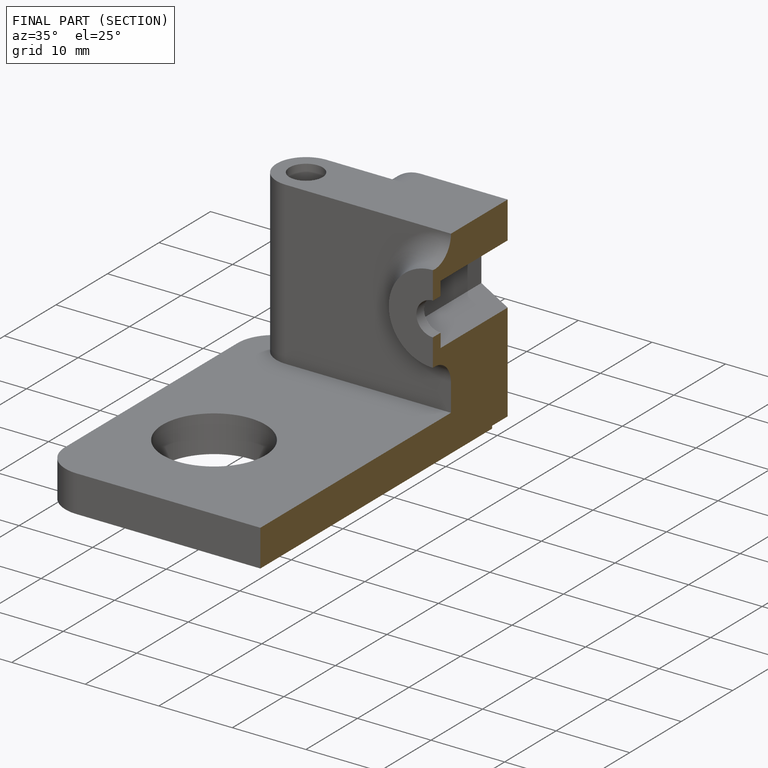
[diagram: finished part — half-section view (interior)]
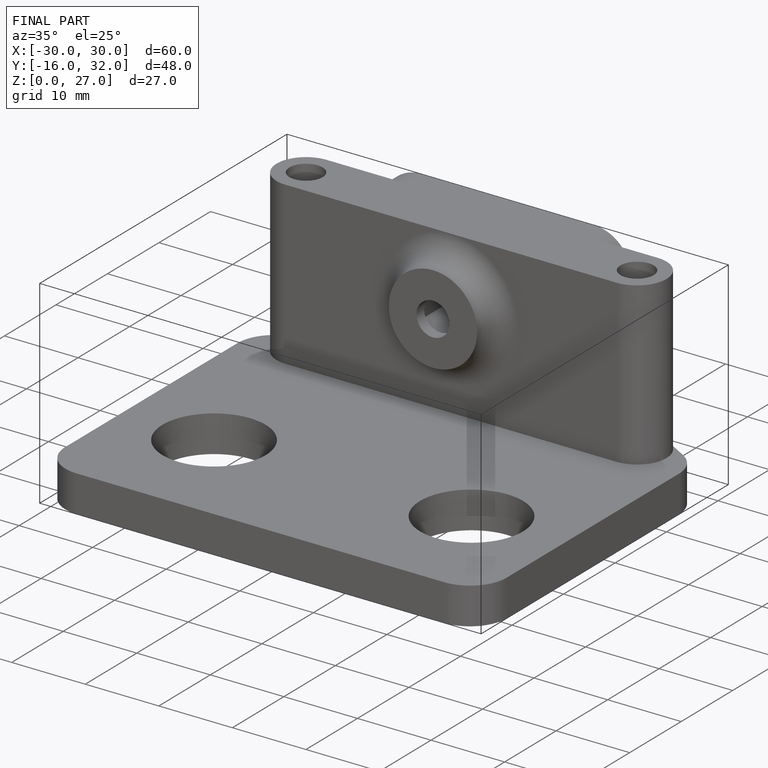
[diagram: finished part — iso view with bounding-box wireframe]
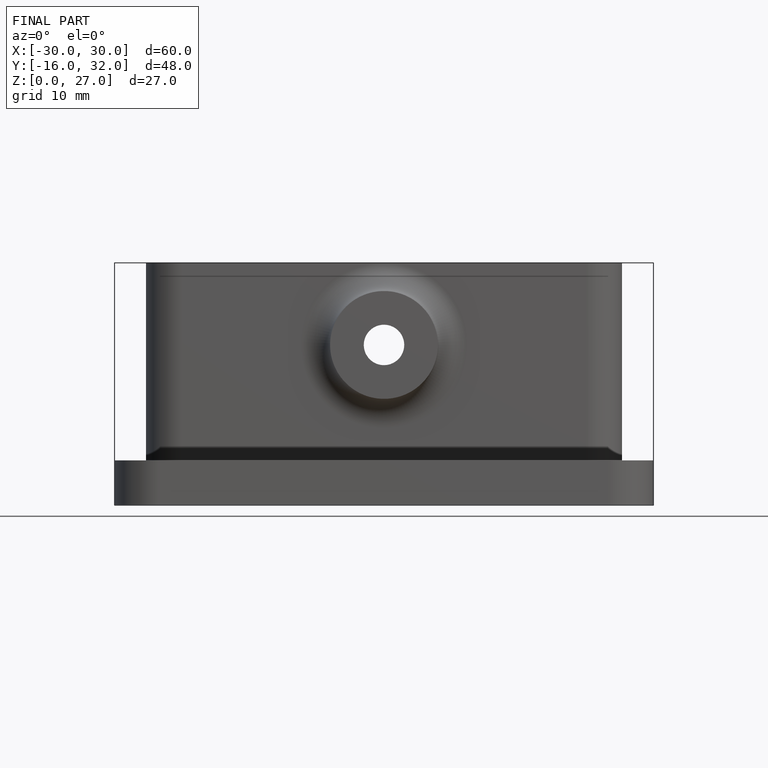
[diagram: finished part — front view with bounding-box wireframe]
